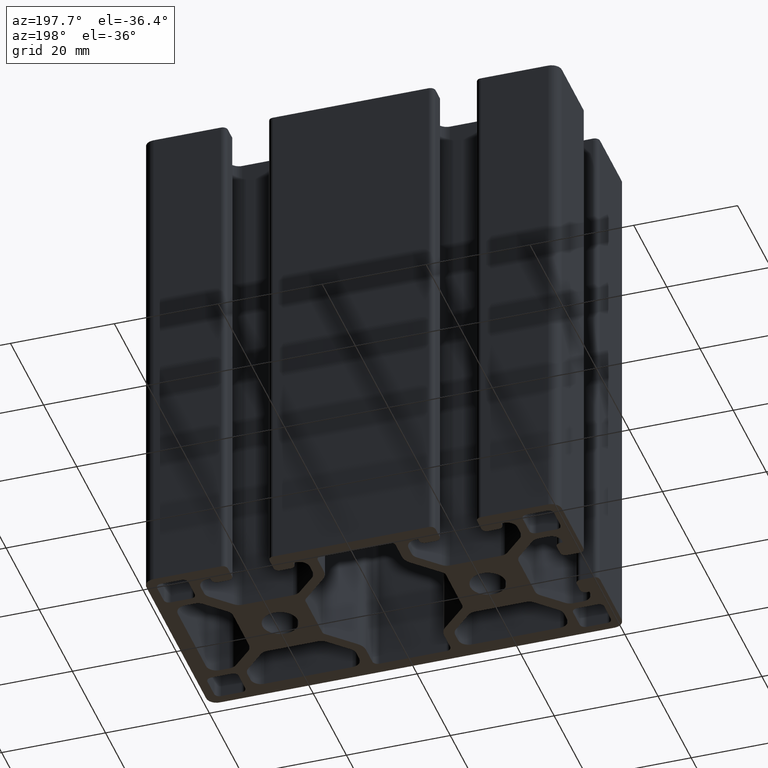
[diagram: clean part render]
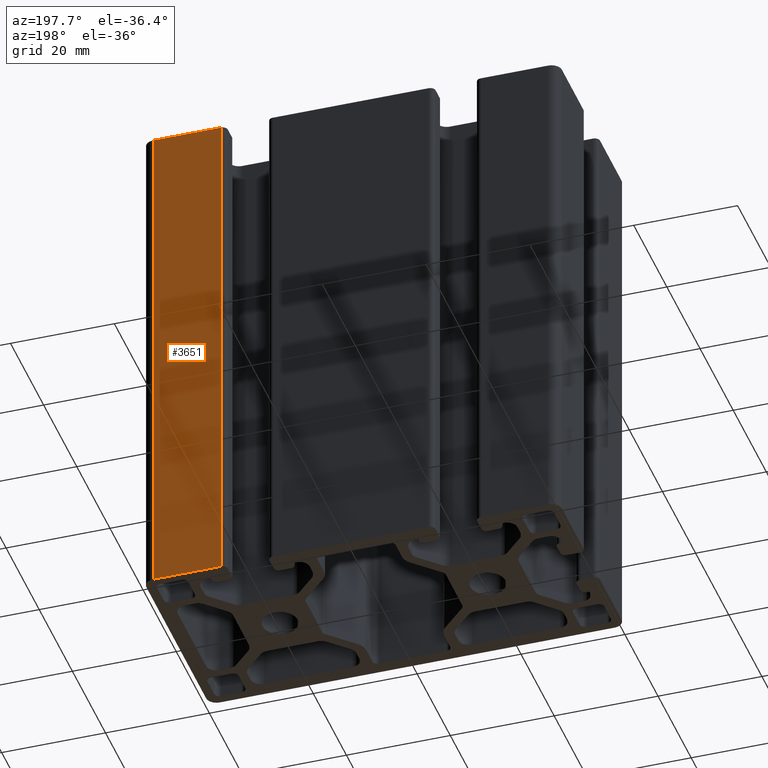
[diagram: same view with one face highlighted and labeled with its STEP entity id]
A machine part, auxiliary view. The second image highlights one B-rep face of the part: STEP entity #3651.
In plain terms, the highlighted planar face has unit normal (-0, 1, 0).
Its self-contained STEP definition (entity closure, byte-faithful):
#125=PLANE('',#4003);
#303=FACE_OUTER_BOUND('',#487,.T.);
#487=EDGE_LOOP('',(#2999,#3000,#3001,#3002));
#688=LINE('',#5618,#1050);
#865=LINE('',#6140,#1227);
#866=LINE('',#6142,#1228);
#867=LINE('',#6143,#1229);
#1050=VECTOR('',#4536,100.);
#1227=VECTOR('',#5053,13.0000019959488);
#1228=VECTOR('',#5054,100.);
#1229=VECTOR('',#5055,13.0000019959488);
#1589=VERTEX_POINT('',#5615);
#1590=VERTEX_POINT('',#5617);
#1765=VERTEX_POINT('',#6139);
#1766=VERTEX_POINT('',#6141);
#2033=EDGE_CURVE('',#1589,#1590,#688,.T.);
#2293=EDGE_CURVE('',#1589,#1765,#865,.T.);
#2294=EDGE_CURVE('',#1766,#1765,#866,.T.);
#2295=EDGE_CURVE('',#1590,#1766,#867,.T.);
#2999=ORIENTED_EDGE('',*,*,#2033,.F.);
#3000=ORIENTED_EDGE('',*,*,#2293,.T.);
#3001=ORIENTED_EDGE('',*,*,#2294,.F.);
#3002=ORIENTED_EDGE('',*,*,#2295,.F.);
#3651=ADVANCED_FACE('',(#303),#125,.T.);
#4003=AXIS2_PLACEMENT_3D('',#6138,#5051,#5052);
#4536=DIRECTION('',(0.,0.,-1.));
#5051=DIRECTION('center_axis',(-1.1686558153949E-16,1.,0.));
#5052=DIRECTION('ref_axis',(-1.,0.,0.));
#5053=DIRECTION('',(1.,1.1686558153949E-16,0.));
#5054=DIRECTION('',(0.,0.,1.));
#5055=DIRECTION('',(1.,1.1686558153949E-16,0.));
#5615=CARTESIAN_POINT('',(24.9999980040512,20.,100.));
#5617=CARTESIAN_POINT('',(24.9999980040512,20.,0.));
#5618=CARTESIAN_POINT('',(24.9999980040512,20.,0.));
#6138=CARTESIAN_POINT('Origin',(38.,20.,0.));
#6139=CARTESIAN_POINT('',(38.,20.,100.));
#6140=CARTESIAN_POINT('',(19.,20.,100.));
#6141=CARTESIAN_POINT('',(38.,20.,0.));
#6142=CARTESIAN_POINT('',(38.,20.,0.));
#6143=CARTESIAN_POINT('',(19.,20.,0.));